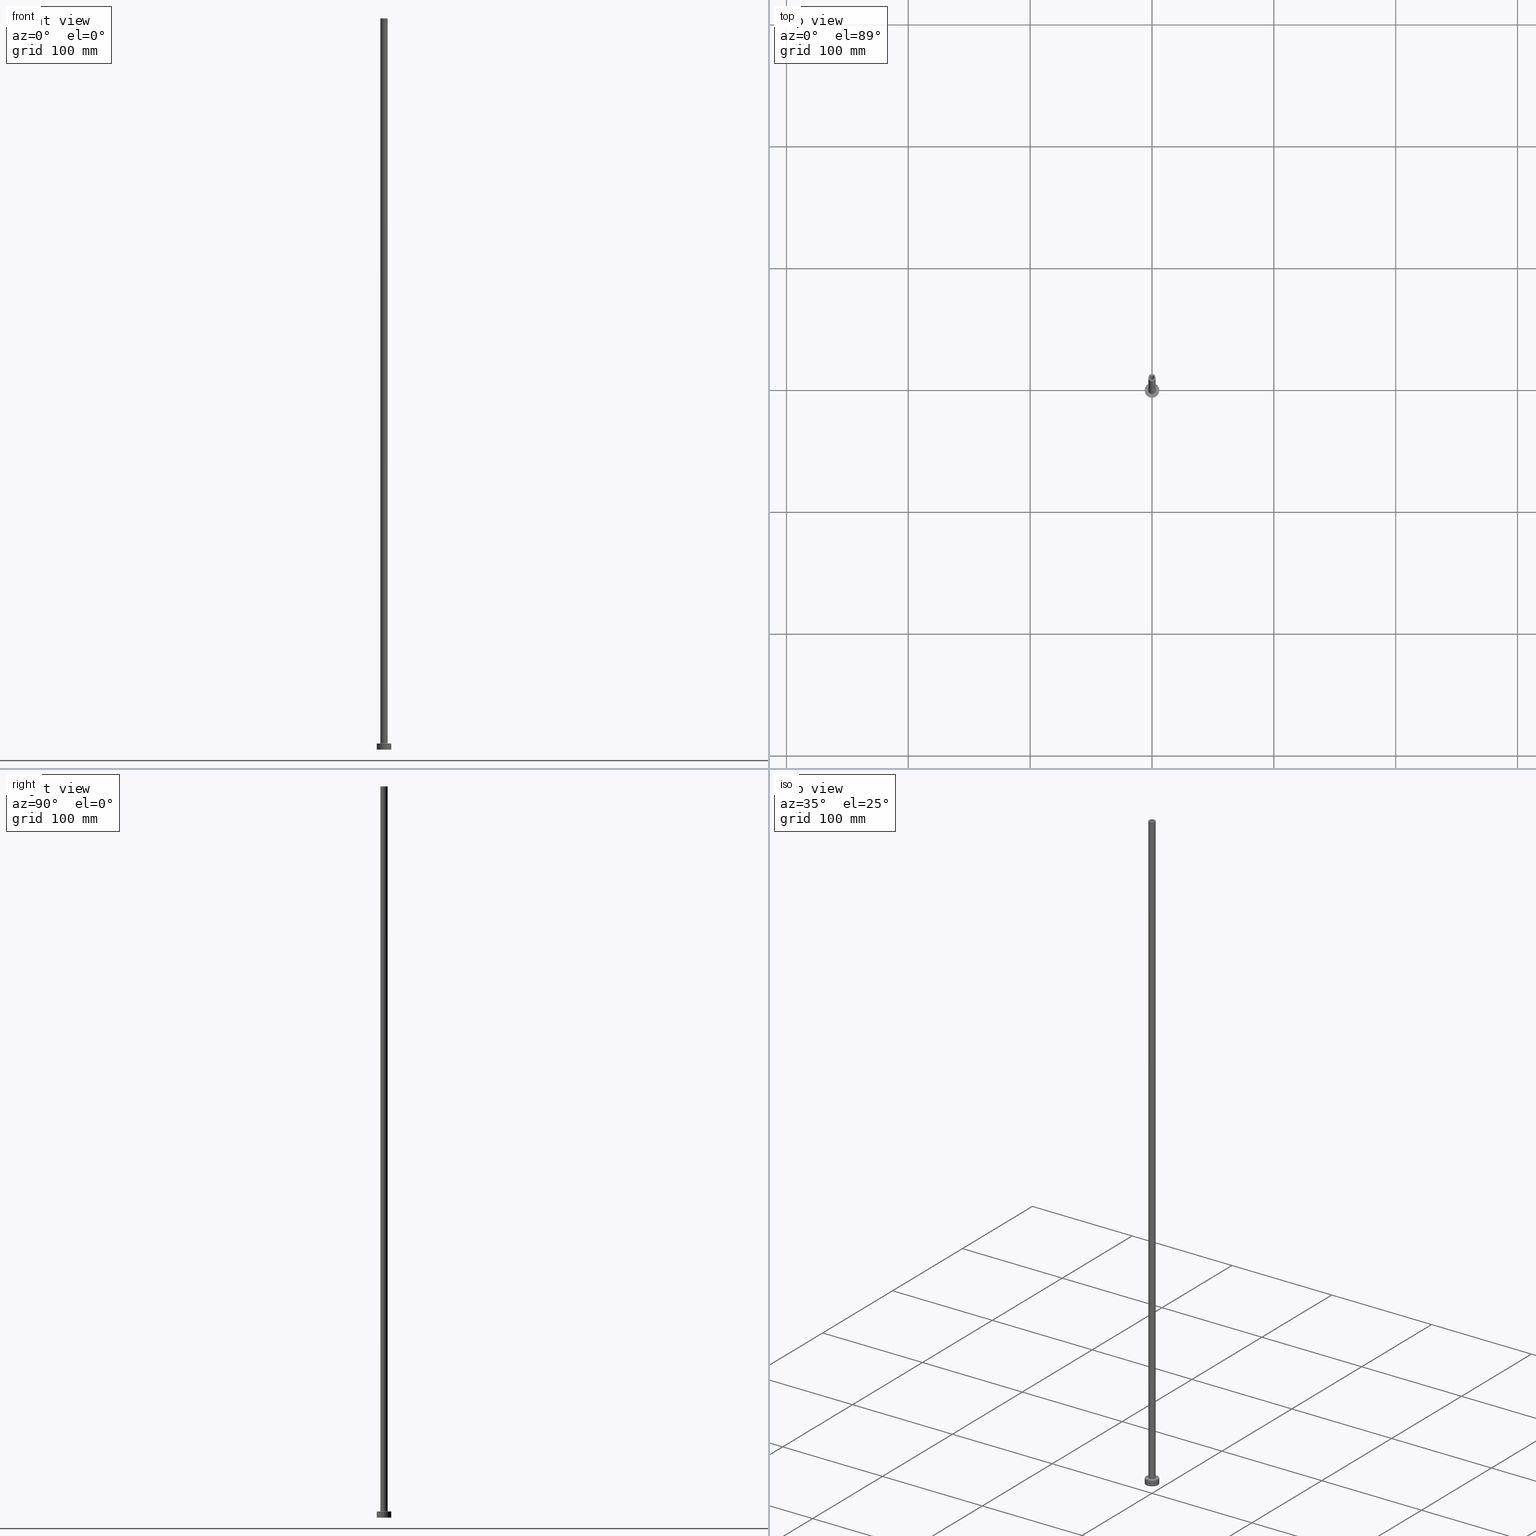
[diagram: canonical four-view strip — front | top / right | iso, engineering-drawing reading convention]
A machine part, canonical four-view strip (front | top / right | iso — engineering-drawing reading convention). The complete STEP part file that produces these views, byte-faithful:
ISO-10303-21;
HEADER;
FILE_DESCRIPTION (( 'STEP AP203' ),
    '1' );
FILE_NAME ('f50b.STEP',
    '2023-02-13T17:48:29',
    ( '' ),
    ( '' ),
    'SwSTEP 2.0',
    'SolidWorks 2019',
    '' );
FILE_SCHEMA (( 'CONFIG_CONTROL_DESIGN' ));
ENDSEC;

DATA;
#1 = DIRECTION ( 'NONE',  ( 1.000000000000000000, 0.000000000000000000, -0.000000000000000000 ) ) ;
#2 = DIRECTION ( 'NONE',  ( 1.000000000000000000, 0.000000000000000000, 0.000000000000000000 ) ) ;
#3 = CC_DESIGN_APPROVAL ( #212, ( #96 ) ) ;
#4 = DIRECTION ( 'NONE',  ( 0.000000000000000000, 0.000000000000000000, -1.000000000000000000 ) ) ;
#5 = AXIS2_PLACEMENT_3D ( 'NONE', #123, #365, #330 ) ;
#6 = ADVANCED_FACE ( 'NONE', ( #11 ), #353, .F. ) ;
#7 = PRODUCT ( 'f50b', 'f50b', '', ( #222 ) ) ;
#8 = CARTESIAN_POINT ( 'NONE',  ( 0.000000000000000000, 0.000000000000000000, 5.000000000000000000 ) ) ;
#9 = CARTESIAN_POINT ( 'NONE',  ( 0.000000000000000000, 0.000000000000000000, 5.000000000000000000 ) ) ;
#10 = AXIS2_PLACEMENT_3D ( 'NONE', #9, #443, #147 ) ;
#11 = FACE_OUTER_BOUND ( 'NONE', #180, .T. ) ;
#12 = EDGE_CURVE ( 'NONE', #36, #326, #440, .T. ) ;
#13 = DIRECTION ( 'NONE',  ( -1.000000000000000000, 0.000000000000000000, 0.000000000000000000 ) ) ;
#14 = PRODUCT_RELATED_PRODUCT_CATEGORY ( 'detail', '', ( #7 ) ) ;
#15 = APPROVAL_DATE_TIME ( #215, #333 ) ;
#16 = EDGE_LOOP ( 'NONE', ( #197, #402 ) ) ;
#17 = CARTESIAN_POINT ( 'NONE',  ( 0.000000000000000000, 0.000000000000000000, 5.499999999999949374 ) ) ;
#18 = APPLICATION_PROTOCOL_DEFINITION ( 'international standard', 'config_control_design', 1994, #119 ) ;
#19 = VECTOR ( 'NONE', #265, 1000.000000000000000 ) ;
#20 = ORIENTED_EDGE ( 'NONE', *, *, #322, .T. ) ;
#21 = EDGE_LOOP ( 'NONE', ( #218, #242, #193, #224 ) ) ;
#22 = EDGE_CURVE ( 'NONE', #155, #229, #398, .T. ) ;
#23 = EDGE_LOOP ( 'NONE', ( #46, #350, #362, #122 ) ) ;
#24 = CYLINDRICAL_SURFACE ( 'NONE', #146, 3.000000000000000444 ) ;
#25 = ORIENTED_EDGE ( 'NONE', *, *, #195, .F. ) ;
#26 = CARTESIAN_POINT ( 'NONE',  ( 1.899999999999999911, 2.326828918379971365E-16, 0.000000000000000000 ) ) ;
#27 = CC_DESIGN_PERSON_AND_ORGANIZATION_ASSIGNMENT ( #285, #445, ( #7 ) ) ;
#28 = APPROVAL_DATE_TIME ( #332, #158 ) ;
#29 = DIRECTION ( 'NONE',  ( 0.000000000000000000, 0.000000000000000000, 1.000000000000000000 ) ) ;
#30 = CARTESIAN_POINT ( 'NONE',  ( -1.899999999999999911, 0.000000000000000000, 554.9999999999998863 ) ) ;
#31 = AXIS2_PLACEMENT_3D ( 'NONE', #397, #149, #280 ) ;
#32 = LOCAL_TIME ( 18, 48, 29.00000000000000000, #277 ) ;
#33 = LINE ( 'NONE', #367, #347 ) ;
#34 = DIRECTION ( 'NONE',  ( -0.000000000000000000, -0.000000000000000000, -1.000000000000000000 ) ) ;
#35 = EDGE_CURVE ( 'NONE', #57, #155, #200, .T. ) ;
#36 = VERTEX_POINT ( 'NONE', #299 ) ;
#37 = DIRECTION ( 'NONE',  ( 0.000000000000000000, 0.000000000000000000, 1.000000000000000000 ) ) ;
#38 = CARTESIAN_POINT ( 'NONE',  ( 0.000000000000000000, 0.000000000000000000, 600.0000000000000000 ) ) ;
#39 = AXIS2_PLACEMENT_3D ( 'NONE', #185, #250, #188 ) ;
#40 = ADVANCED_FACE ( 'NONE', ( #416 ), #303, .F. ) ;
#41 = DIRECTION ( 'NONE',  ( 0.000000000000000000, -1.000000000000000000, 0.000000000000000000 ) ) ;
#42 = PERSON ( 'NEUR�EN�', 'NEUR�EN�', 'NEUR�EN�', ('NEUR�EN�'), ('NEUR�EN�'), ('NEUR�EN�') ) ;
#43 = DIRECTION ( 'NONE',  ( -1.000000000000000000, 0.000000000000000000, 0.000000000000000000 ) ) ;
#44 = COORDINATED_UNIVERSAL_TIME_OFFSET ( 1, 0, .AHEAD. ) ;
#45 = DIRECTION ( 'NONE',  ( 1.000000000000000000, 0.000000000000000000, -0.000000000000000000 ) ) ;
#46 = ORIENTED_EDGE ( 'NONE', *, *, #264, .F. ) ;
#47 = CIRCLE ( 'NONE', #5, 1.750000000000000000 ) ;
#48 = CC_DESIGN_DATE_AND_TIME_ASSIGNMENT ( #58, #355, ( #437 ) ) ;
#49 = PRODUCT_DEFINITION_SHAPE ( 'NONE', 'NONE',  #437 ) ;
#50 = FACE_OUTER_BOUND ( 'NONE', #23, .T. ) ;
#51 = VERTEX_POINT ( 'NONE', #236 ) ;
#52 = EDGE_CURVE ( 'NONE', #90, #438, #33, .T. ) ;
#53 = DIRECTION ( 'NONE',  ( -0.000000000000000000, -0.000000000000000000, -1.000000000000000000 ) ) ;
#54 = AXIS2_PLACEMENT_3D ( 'NONE', #17, #156, #290 ) ;
#55 = DIRECTION ( 'NONE',  ( 0.000000000000000000, 0.000000000000000000, 1.000000000000000000 ) ) ;
#56 = CALENDAR_DATE ( 2023, 13, 2 ) ;
#57 = VERTEX_POINT ( 'NONE', #380 ) ;
#58 = DATE_AND_TIME ( #56, #385 ) ;
#59 = ADVANCED_FACE ( 'NONE', ( #171, #425 ), #457, .F. ) ;
#60 = CIRCLE ( 'NONE', #325, 3.000000000000000444 ) ;
#61 = CYLINDRICAL_SURFACE ( 'NONE', #386, 6.000000000000000888 ) ;
#62 = ORIENTED_EDGE ( 'NONE', *, *, #52, .T. ) ;
#63 = VERTEX_POINT ( 'NONE', #337 ) ;
#64 = ORIENTED_EDGE ( 'NONE', *, *, #113, .F. ) ;
#65 = EDGE_LOOP ( 'NONE', ( #446, #422, #318, #289 ) ) ;
#66 = LOCAL_TIME ( 18, 48, 29.00000000000000000, #44 ) ;
#67 = AXIS2_PLACEMENT_3D ( 'NONE', #69, #37, #178 ) ;
#68 = PERSON_AND_ORGANIZATION ( #42, #434 ) ;
#69 = CARTESIAN_POINT ( 'NONE',  ( 0.000000000000000000, 0.000000000000000000, 554.9999999999998863 ) ) ;
#70 = PERSON_AND_ORGANIZATION_ROLE ( 'design_supplier' ) ;
#71 = LINE ( 'NONE', #301, #99 ) ;
#72 =( NAMED_UNIT ( * ) SI_UNIT ( $, .STERADIAN. ) SOLID_ANGLE_UNIT ( ) );
#73 = LOCAL_TIME ( 18, 48, 29.00000000000000000, #432 ) ;
#74 = ADVANCED_FACE ( 'NONE', ( #298 ), #334, .F. ) ;
#75 = ORIENTED_EDGE ( 'NONE', *, *, #286, .F. ) ;
#76 = CARTESIAN_POINT ( 'NONE',  ( -1.899999999999999911, 0.000000000000000000, 0.000000000000000000 ) ) ;
#77 = EDGE_CURVE ( 'NONE', #269, #331, #268, .T. ) ;
#78 = CIRCLE ( 'NONE', #54, 3.000000000000000444 ) ;
#79 = CYLINDRICAL_SURFACE ( 'NONE', #461, 1.899999999999999911 ) ;
#80 = ORIENTED_EDGE ( 'NONE', *, *, #240, .T. ) ;
#81 = FACE_OUTER_BOUND ( 'NONE', #241, .T. ) ;
#82 = ORIENTED_EDGE ( 'NONE', *, *, #153, .T. ) ;
#83 = CARTESIAN_POINT ( 'NONE',  ( -3.500000000000000444, 4.286263797015737088E-16, 5.499999999999949374 ) ) ;
#84 = FACE_OUTER_BOUND ( 'NONE', #231, .T. ) ;
#85 = COORDINATED_UNIVERSAL_TIME_OFFSET ( 1, 0, .AHEAD. ) ;
#86 = ORIENTED_EDGE ( 'NONE', *, *, #203, .F. ) ;
#87 = EDGE_LOOP ( 'NONE', ( #139, #181 ) ) ;
#88 = EDGE_CURVE ( 'NONE', #269, #305, #381, .T. ) ;
#89 = DIRECTION ( 'NONE',  ( 1.000000000000000000, 0.000000000000000000, 0.000000000000000000 ) ) ;
#90 = VERTEX_POINT ( 'NONE', #30 ) ;
#91 = EDGE_LOOP ( 'NONE', ( #20, #80 ) ) ;
#92 = EDGE_CURVE ( 'NONE', #90, #258, #211, .T. ) ;
#93 = DIRECTION ( 'NONE',  ( 0.000000000000000000, 0.000000000000000000, 1.000000000000000000 ) ) ;
#94 = CARTESIAN_POINT ( 'NONE',  ( -1.750000000000000000, 0.000000000000000000, 600.0000000000000000 ) ) ;
#95 = CARTESIAN_POINT ( 'NONE',  ( 0.000000000000000000, 0.000000000000000000, 5.000000000000000000 ) ) ;
#96 = PRODUCT_DEFINITION_FORMATION_WITH_SPECIFIED_SOURCE ( 'LIBOVOLN�', '', #7, .NOT_KNOWN. ) ;
#97 = DIRECTION ( 'NONE',  ( 0.000000000000000000, 0.000000000000000000, 1.000000000000000000 ) ) ;
#98 = DESIGN_CONTEXT ( 'detailed design', #270, 'design' ) ;
#99 = VECTOR ( 'NONE', #206, 1000.000000000000000 ) ;
#100 = FACE_OUTER_BOUND ( 'NONE', #144, .T. ) ;
#101 = CARTESIAN_POINT ( 'NONE',  ( 0.000000000000000000, 0.000000000000000000, 600.0000000000000000 ) ) ;
#102 =( NAMED_UNIT ( * ) PLANE_ANGLE_UNIT ( ) SI_UNIT ( $, .RADIAN. ) );
#103 = DIRECTION ( 'NONE',  ( 1.000000000000000000, 0.000000000000000000, 0.000000000000000000 ) ) ;
#104 = DATE_AND_TIME ( #418, #73 ) ;
#105 = ORIENTED_EDGE ( 'NONE', *, *, #240, .F. ) ;
#106 = CARTESIAN_POINT ( 'NONE',  ( 6.000000000000000888, 7.347880794884120722E-16, 0.000000000000000000 ) ) ;
#107 = EDGE_CURVE ( 'NONE', #366, #155, #71, .T. ) ;
#108 = APPROVAL_PERSON_ORGANIZATION ( #127, #212, #266 ) ;
#109 = CLOSED_SHELL ( 'NONE', ( #6, #329, #74, #348, #311, #419, #426, #59, #172, #271, #40, #304, #429, #455 ) ) ;
#110 = ORIENTED_EDGE ( 'NONE', *, *, #12, .T. ) ;
#111 = VECTOR ( 'NONE', #363, 1000.000000000000000 ) ;
#112 = CALENDAR_DATE ( 2023, 13, 2 ) ;
#113 = EDGE_CURVE ( 'NONE', #305, #232, #343, .T. ) ;
#114 = ORIENTED_EDGE ( 'NONE', *, *, #294, .F. ) ;
#115 = DIRECTION ( 'NONE',  ( -0.000000000000000000, -0.000000000000000000, -1.000000000000000000 ) ) ;
#116 = CARTESIAN_POINT ( 'NONE',  ( 1.750000000000000000, 2.143131898507868297E-16, 600.0000000000000000 ) ) ;
#117 = ORIENTED_EDGE ( 'NONE', *, *, #274, .F. ) ;
#118 = DIRECTION ( 'NONE',  ( -1.000000000000000000, 0.000000000000000000, 0.000000000000000000 ) ) ;
#119 = APPLICATION_CONTEXT ( 'configuration controlled 3d designs of mechanical parts and assemblies' ) ;
#120 = AXIS2_PLACEMENT_3D ( 'NONE', #279, #55, #257 ) ;
#121 = VERTEX_POINT ( 'NONE', #26 ) ;
#122 = ORIENTED_EDGE ( 'NONE', *, *, #88, .F. ) ;
#123 = CARTESIAN_POINT ( 'NONE',  ( 0.000000000000000000, 0.000000000000000000, 554.9999999999998863 ) ) ;
#124 = AXIS2_PLACEMENT_3D ( 'NONE', #319, #401, #13 ) ;
#125 = VECTOR ( 'NONE', #175, 1000.000000000000000 ) ;
#126 = FACE_OUTER_BOUND ( 'NONE', #16, .T. ) ;
#127 = PERSON_AND_ORGANIZATION ( #42, #434 ) ;
#128 = ORIENTED_EDGE ( 'NONE', *, *, #107, .T. ) ;
#129 = DIRECTION ( 'NONE',  ( 1.000000000000000000, 0.000000000000000000, 0.000000000000000000 ) ) ;
#130 = CARTESIAN_POINT ( 'NONE',  ( 0.000000000000000000, 0.000000000000000000, 5.499999999999949374 ) ) ;
#131 = AXIS2_PLACEMENT_3D ( 'NONE', #196, #134, #129 ) ;
#132 = CARTESIAN_POINT ( 'NONE',  ( 0.000000000000000000, 0.000000000000000000, 5.000000000000000000 ) ) ;
#133 = DIRECTION ( 'NONE',  ( 0.000000000000000000, 0.000000000000000000, -1.000000000000000000 ) ) ;
#134 = DIRECTION ( 'NONE',  ( 0.000000000000000000, 0.000000000000000000, 1.000000000000000000 ) ) ;
#135 = CC_DESIGN_PERSON_AND_ORGANIZATION_ASSIGNMENT ( #308, #70, ( #96 ) ) ;
#136 = APPROVAL_ROLE ( '' ) ;
#137 = FACE_OUTER_BOUND ( 'NONE', #21, .T. ) ;
#138 = CARTESIAN_POINT ( 'NONE',  ( 1.899999999999999911, 2.326828918379971365E-16, 554.9999999999998863 ) ) ;
#139 = ORIENTED_EDGE ( 'NONE', *, *, #203, .T. ) ;
#140 = EDGE_CURVE ( 'NONE', #424, #57, #411, .T. ) ;
#141 = CARTESIAN_POINT ( 'NONE',  ( 0.000000000000000000, 0.000000000000000000, 600.0000000000000000 ) ) ;
#142 = CIRCLE ( 'NONE', #273, 1.750000000000000000 ) ;
#143 = DIRECTION ( 'NONE',  ( 0.000000000000000000, 0.000000000000000000, -1.000000000000000000 ) ) ;
#144 = EDGE_LOOP ( 'NONE', ( #409, #221 ) ) ;
#145 = EDGE_CURVE ( 'NONE', #331, #232, #291, .T. ) ;
#146 = AXIS2_PLACEMENT_3D ( 'NONE', #283, #214, #118 ) ;
#147 = DIRECTION ( 'NONE',  ( 1.000000000000000000, 0.000000000000000000, 0.000000000000000000 ) ) ;
#148 = CIRCLE ( 'NONE', #413, 1.899999999999999911 ) ;
#149 = DIRECTION ( 'NONE',  ( 0.000000000000000000, 0.000000000000000000, -1.000000000000000000 ) ) ;
#150 = ORIENTED_EDGE ( 'NONE', *, *, #391, .F. ) ;
#151 = CARTESIAN_POINT ( 'NONE',  ( 6.000000000000000888, 7.347880794884120722E-16, 5.000000000000000000 ) ) ;
#152 = ORIENTED_EDGE ( 'NONE', *, *, #230, .F. ) ;
#153 = EDGE_CURVE ( 'NONE', #366, #424, #216, .T. ) ;
#154 = DIRECTION ( 'NONE',  ( 1.000000000000000000, 0.000000000000000000, 0.000000000000000000 ) ) ;
#155 = VERTEX_POINT ( 'NONE', #187 ) ;
#156 = DIRECTION ( 'NONE',  ( 0.000000000000000000, 0.000000000000000000, 1.000000000000000000 ) ) ;
#157 = AXIS2_PLACEMENT_3D ( 'NONE', #369, #456, #173 ) ;
#158 = APPROVAL ( #296, 'NEUR�EN�' ) ;
#159 = PLANE ( 'NONE',  #120 ) ;
#160 = CALENDAR_DATE ( 2023, 13, 2 ) ;
#161 = ORIENTED_EDGE ( 'NONE', *, *, #52, .F. ) ;
#162 = ORIENTED_EDGE ( 'NONE', *, *, #322, .F. ) ;
#163 = CARTESIAN_POINT ( 'NONE',  ( 3.000000000000000444, 3.673940397442060361E-16, 600.0000000000000000 ) ) ;
#164 = PERSON_AND_ORGANIZATION_ROLE ( 'creator' ) ;
#165 = AXIS2_PLACEMENT_3D ( 'NONE', #130, #414, #458 ) ;
#166 = AXIS2_PLACEMENT_3D ( 'NONE', #441, #255, #404 ) ;
#167 = DIRECTION ( 'NONE',  ( -0.000000000000000000, -0.000000000000000000, -1.000000000000000000 ) ) ;
#168 = PERSON_AND_ORGANIZATION ( #42, #434 ) ;
#169 = EDGE_LOOP ( 'NONE', ( #261, #444, #375, #161 ) ) ;
#170 = DIRECTION ( 'NONE',  ( -1.000000000000000000, 0.000000000000000000, 0.000000000000000000 ) ) ;
#171 = FACE_BOUND ( 'NONE', #393, .T. ) ;
#172 = ADVANCED_FACE ( 'NONE', ( #394 ), #24, .T. ) ;
#173 = DIRECTION ( 'NONE',  ( 1.000000000000000000, 0.000000000000000000, 0.000000000000000000 ) ) ;
#174 = LOCAL_TIME ( 18, 48, 29.00000000000000000, #85 ) ;
#175 = DIRECTION ( 'NONE',  ( 0.000000000000000000, 0.000000000000000000, -1.000000000000000000 ) ) ;
#176 = APPROVAL_STATUS ( 'not_yet_approved' ) ;
#177 = AXIS2_PLACEMENT_3D ( 'NONE', #406, #29, #306 ) ;
#178 = DIRECTION ( 'NONE',  ( 1.000000000000000000, 0.000000000000000000, 0.000000000000000000 ) ) ;
#179 = AXIS2_PLACEMENT_3D ( 'NONE', #132, #387, #45 ) ;
#180 = EDGE_LOOP ( 'NONE', ( #297, #110, #86, #341 ) ) ;
#181 = ORIENTED_EDGE ( 'NONE', *, *, #186, .T. ) ;
#182 = AXIS2_PLACEMENT_3D ( 'NONE', #287, #53, #351 ) ;
#183 = UNCERTAINTY_MEASURE_WITH_UNIT (LENGTH_MEASURE( 1.000000000000000082E-05 ), #338, 'distance_accuracy_value', 'NONE');
#184 = AXIS2_PLACEMENT_3D ( 'NONE', #383, #420, #1 ) ;
#185 = CARTESIAN_POINT ( 'NONE',  ( 0.000000000000000000, 0.000000000000000000, 600.0000000000000000 ) ) ;
#186 = EDGE_CURVE ( 'NONE', #326, #51, #243, .T. ) ;
#187 = CARTESIAN_POINT ( 'NONE',  ( -3.000000000000000444, 0.000000000000000000, 5.499999999999949374 ) ) ;
#188 = DIRECTION ( 'NONE',  ( 1.000000000000000000, 0.000000000000000000, 0.000000000000000000 ) ) ;
#189 = DIRECTION ( 'NONE',  ( 1.224646799147353207E-16, 1.000000000000000000, -0.000000000000000000 ) ) ;
#190 = DIRECTION ( 'NONE',  ( 1.000000000000000000, 0.000000000000000000, 0.000000000000000000 ) ) ;
#191 = AXIS2_PLACEMENT_3D ( 'NONE', #263, #93, #190 ) ;
#192 = CIRCLE ( 'NONE', #39, 1.750000000000000000 ) ;
#193 = ORIENTED_EDGE ( 'NONE', *, *, #354, .T. ) ;
#194 = ORIENTED_EDGE ( 'NONE', *, *, #230, .T. ) ;
#195 = EDGE_CURVE ( 'NONE', #155, #57, #78, .T. ) ;
#196 = CARTESIAN_POINT ( 'NONE',  ( 0.000000000000000000, 0.000000000000000000, 0.000000000000000000 ) ) ;
#197 = ORIENTED_EDGE ( 'NONE', *, *, #77, .T. ) ;
#198 = ORIENTED_EDGE ( 'NONE', *, *, #107, .F. ) ;
#199 = EDGE_LOOP ( 'NONE', ( #64, #117 ) ) ;
#200 = CIRCLE ( 'NONE', #177, 3.000000000000000444 ) ;
#201 = AXIS2_PLACEMENT_3D ( 'NONE', #101, #415, #235 ) ;
#202 = ORIENTED_EDGE ( 'NONE', *, *, #249, .F. ) ;
#203 = EDGE_CURVE ( 'NONE', #51, #326, #47, .T. ) ;
#204 = CARTESIAN_POINT ( 'NONE',  ( 1.899999999999999911, 2.326828918379971365E-16, 560.3740115370177364 ) ) ;
#205 = PERSON_AND_ORGANIZATION_ROLE ( 'creator' ) ;
#206 = DIRECTION ( 'NONE',  ( -0.000000000000000000, -0.000000000000000000, -1.000000000000000000 ) ) ;
#207 = CIRCLE ( 'NONE', #237, 6.000000000000000888 ) ;
#208 =( GEOMETRIC_REPRESENTATION_CONTEXT ( 3 ) GLOBAL_UNCERTAINTY_ASSIGNED_CONTEXT ( ( #183 ) ) GLOBAL_UNIT_ASSIGNED_CONTEXT ( ( #338, #102, #72 ) ) REPRESENTATION_CONTEXT ( 'NONE', 'WORKASPACE' ) );
#209 = DIRECTION ( 'NONE',  ( 1.000000000000000000, 0.000000000000000000, -0.000000000000000000 ) ) ;
#210 = DATE_TIME_ROLE ( 'classification_date' ) ;
#211 = CIRCLE ( 'NONE', #67, 1.899999999999999911 ) ;
#212 = APPROVAL ( #454, 'NEUR�EN�' ) ;
#213 = CARTESIAN_POINT ( 'NONE',  ( -6.000000000000000888, 0.000000000000000000, 0.000000000000000000 ) ) ;
#214 = DIRECTION ( 'NONE',  ( -0.000000000000000000, -0.000000000000000000, -1.000000000000000000 ) ) ;
#215 = DATE_AND_TIME ( #372, #66 ) ;
#216 = CIRCLE ( 'NONE', #191, 3.000000000000000444 ) ;
#217 = DIRECTION ( 'NONE',  ( 0.000000000000000000, 0.000000000000000000, 1.000000000000000000 ) ) ;
#218 = ORIENTED_EDGE ( 'NONE', *, *, #12, .F. ) ;
#219 = APPROVAL_PERSON_ORGANIZATION ( #361, #158, #136 ) ;
#220 = DIRECTION ( 'NONE',  ( 0.000000000000000000, 0.000000000000000000, 1.000000000000000000 ) ) ;
#221 = ORIENTED_EDGE ( 'NONE', *, *, #436, .F. ) ;
#222 = MECHANICAL_CONTEXT ( 'NONE', #119, 'mechanical' ) ;
#223 = FACE_BOUND ( 'NONE', #288, .T. ) ;
#224 = ORIENTED_EDGE ( 'NONE', *, *, #186, .F. ) ;
#225 = APPROVAL_PERSON_ORGANIZATION ( #68, #333, #340 ) ;
#226 = SHAPE_DEFINITION_REPRESENTATION ( #49, #293 ) ;
#227 = FACE_OUTER_BOUND ( 'NONE', #169, .T. ) ;
#228 = COORDINATED_UNIVERSAL_TIME_OFFSET ( 1, 0, .AHEAD. ) ;
#229 = VERTEX_POINT ( 'NONE', #384 ) ;
#230 = EDGE_CURVE ( 'NONE', #438, #121, #323, .T. ) ;
#231 = EDGE_LOOP ( 'NONE', ( #324, #259, #278, #198 ) ) ;
#232 = VERTEX_POINT ( 'NONE', #106 ) ;
#233 = CARTESIAN_POINT ( 'NONE',  ( -3.000000000000000444, 0.000000000000000000, 600.0000000000000000 ) ) ;
#234 = EDGE_LOOP ( 'NONE', ( #150, #352, #62, #194 ) ) ;
#235 = DIRECTION ( 'NONE',  ( -1.000000000000000000, 0.000000000000000000, 0.000000000000000000 ) ) ;
#236 = CARTESIAN_POINT ( 'NONE',  ( -1.750000000000000000, 0.000000000000000000, 554.9999999999998863 ) ) ;
#237 = AXIS2_PLACEMENT_3D ( 'NONE', #314, #217, #89 ) ;
#238 = PLANE ( 'NONE',  #276 ) ;
#239 = VERTEX_POINT ( 'NONE', #452 ) ;
#240 = EDGE_CURVE ( 'NONE', #229, #239, #442, .T. ) ;
#241 = EDGE_LOOP ( 'NONE', ( #82, #364 ) ) ;
#242 = ORIENTED_EDGE ( 'NONE', *, *, #294, .T. ) ;
#243 = CIRCLE ( 'NONE', #421, 1.750000000000000000 ) ;
#244 = SECURITY_CLASSIFICATION_LEVEL ( 'unclassified' ) ;
#245 = EDGE_CURVE ( 'NONE', #57, #239, #390, .T. ) ;
#246 = AXIS2_PLACEMENT_3D ( 'NONE', #295, #97, #373 ) ;
#247 = CARTESIAN_POINT ( 'NONE',  ( 3.500000000000000444, 0.000000000000000000, 5.499999999999949374 ) ) ;
#248 = DIRECTION ( 'NONE',  ( -1.000000000000000000, 0.000000000000000000, 0.000000000000000000 ) ) ;
#249 = EDGE_CURVE ( 'NONE', #63, #36, #142, .T. ) ;
#250 = DIRECTION ( 'NONE',  ( 0.000000000000000000, 0.000000000000000000, 1.000000000000000000 ) ) ;
#251 = ORIENTED_EDGE ( 'NONE', *, *, #245, .T. ) ;
#252 = DIRECTION ( 'NONE',  ( 0.000000000000000000, 0.000000000000000000, -1.000000000000000000 ) ) ;
#253 = CARTESIAN_POINT ( 'NONE',  ( 0.000000000000000000, 0.000000000000000000, 560.3740115370177364 ) ) ;
#254 = CARTESIAN_POINT ( 'NONE',  ( 0.000000000000000000, 0.000000000000000000, 554.9999999999998863 ) ) ;
#255 = DIRECTION ( 'NONE',  ( 0.000000000000000000, 0.000000000000000000, 1.000000000000000000 ) ) ;
#256 = DIRECTION ( 'NONE',  ( -1.000000000000000000, 1.224646799147354440E-16, 0.000000000000000000 ) ) ;
#257 = DIRECTION ( 'NONE',  ( 1.000000000000000000, 0.000000000000000000, -0.000000000000000000 ) ) ;
#258 = VERTEX_POINT ( 'NONE', #138 ) ;
#259 = ORIENTED_EDGE ( 'NONE', *, *, #140, .T. ) ;
#260 = CC_DESIGN_SECURITY_CLASSIFICATION ( #430, ( #96 ) ) ;
#261 = ORIENTED_EDGE ( 'NONE', *, *, #92, .T. ) ;
#262 = VECTOR ( 'NONE', #252, 1000.000000000000000 ) ;
#263 = CARTESIAN_POINT ( 'NONE',  ( 0.000000000000000000, 0.000000000000000000, 600.0000000000000000 ) ) ;
#264 = EDGE_CURVE ( 'NONE', #331, #269, #433, .T. ) ;
#265 = DIRECTION ( 'NONE',  ( -0.000000000000000000, -0.000000000000000000, -1.000000000000000000 ) ) ;
#266 = APPROVAL_ROLE ( '' ) ;
#267 = DIRECTION ( 'NONE',  ( 1.000000000000000000, 0.000000000000000000, 0.000000000000000000 ) ) ;
#268 = CIRCLE ( 'NONE', #157, 6.000000000000000888 ) ;
#269 = VERTEX_POINT ( 'NONE', #408 ) ;
#270 = APPLICATION_CONTEXT ( 'configuration controlled 3d designs of mechanical parts and assemblies' ) ;
#271 = ADVANCED_FACE ( 'NONE', ( #223, #81 ), #159, .T. ) ;
#272 = PERSON_AND_ORGANIZATION ( #42, #434 ) ;
#273 = AXIS2_PLACEMENT_3D ( 'NONE', #435, #313, #309 ) ;
#274 = EDGE_CURVE ( 'NONE', #232, #305, #207, .T. ) ;
#275 = CIRCLE ( 'NONE', #10, 3.500000000000000444 ) ;
#276 = AXIS2_PLACEMENT_3D ( 'NONE', #307, #339, #209 ) ;
#277 = COORDINATED_UNIVERSAL_TIME_OFFSET ( 1, 0, .AHEAD. ) ;
#278 = ORIENTED_EDGE ( 'NONE', *, *, #35, .T. ) ;
#279 = CARTESIAN_POINT ( 'NONE',  ( 0.000000000000000000, 0.000000000000000000, 600.0000000000000000 ) ) ;
#280 = DIRECTION ( 'NONE',  ( -1.000000000000000000, 0.000000000000000000, 0.000000000000000000 ) ) ;
#281 = CC_DESIGN_PERSON_AND_ORGANIZATION_ASSIGNMENT ( #272, #460, ( #430 ) ) ;
#282 = CARTESIAN_POINT ( 'NONE',  ( 0.000000000000000000, 0.000000000000000000, 0.000000000000000000 ) ) ;
#283 = CARTESIAN_POINT ( 'NONE',  ( 0.000000000000000000, 0.000000000000000000, 600.0000000000000000 ) ) ;
#284 = FACE_OUTER_BOUND ( 'NONE', #234, .T. ) ;
#285 = PERSON_AND_ORGANIZATION ( #42, #434 ) ;
#286 = EDGE_CURVE ( 'NONE', #121, #438, #389, .T. ) ;
#287 = CARTESIAN_POINT ( 'NONE',  ( 0.000000000000000000, 0.000000000000000000, 5.000000000000000000 ) ) ;
#288 = EDGE_LOOP ( 'NONE', ( #202, #114 ) ) ;
#289 = ORIENTED_EDGE ( 'NONE', *, *, #113, .T. ) ;
#290 = DIRECTION ( 'NONE',  ( 1.000000000000000000, 0.000000000000000000, 0.000000000000000000 ) ) ;
#291 = LINE ( 'NONE', #449, #19 ) ;
#292 = AXIS2_PLACEMENT_3D ( 'NONE', #95, #34, #267 ) ;
#293 = ADVANCED_BREP_SHAPE_REPRESENTATION ( 'f50b', ( #388, #166 ), #208 ) ;
#294 = EDGE_CURVE ( 'NONE', #36, #63, #192, .T. ) ;
#295 = CARTESIAN_POINT ( 'NONE',  ( 0.000000000000000000, 0.000000000000000000, 5.499999999999949374 ) ) ;
#296 = APPROVAL_STATUS ( 'not_yet_approved' ) ;
#297 = ORIENTED_EDGE ( 'NONE', *, *, #249, .T. ) ;
#298 = FACE_OUTER_BOUND ( 'NONE', #335, .T. ) ;
#299 = CARTESIAN_POINT ( 'NONE',  ( 1.750000000000000000, 2.143131898507868297E-16, 600.0000000000000000 ) ) ;
#300 = CARTESIAN_POINT ( 'NONE',  ( 0.000000000000000000, 0.000000000000000000, 0.000000000000000000 ) ) ;
#301 = CARTESIAN_POINT ( 'NONE',  ( -3.000000000000000444, 0.000000000000000000, 600.0000000000000000 ) ) ;
#302 = DIRECTION ( 'NONE',  ( 0.000000000000000000, 0.000000000000000000, -1.000000000000000000 ) ) ;
#303 = TOROIDAL_SURFACE ( 'NONE', #246, 3.500000000000000444, 0.5000000000000000000 ) ;
#304 = ADVANCED_FACE ( 'NONE', ( #284 ), #79, .F. ) ;
#305 = VERTEX_POINT ( 'NONE', #213 ) ;
#306 = DIRECTION ( 'NONE',  ( 1.000000000000000000, 0.000000000000000000, 0.000000000000000000 ) ) ;
#307 = CARTESIAN_POINT ( 'NONE',  ( 0.000000000000000000, 0.000000000000000000, 554.9999999999998863 ) ) ;
#308 = PERSON_AND_ORGANIZATION ( #42, #434 ) ;
#309 = DIRECTION ( 'NONE',  ( 1.000000000000000000, 0.000000000000000000, 0.000000000000000000 ) ) ;
#310 = DIRECTION ( 'NONE',  ( 0.000000000000000000, 0.000000000000000000, 1.000000000000000000 ) ) ;
#311 = ADVANCED_FACE ( 'NONE', ( #50 ), #349, .T. ) ;
#312 = AXIS2_PLACEMENT_3D ( 'NONE', #247, #41, #143 ) ;
#313 = DIRECTION ( 'NONE',  ( 0.000000000000000000, 0.000000000000000000, 1.000000000000000000 ) ) ;
#314 = CARTESIAN_POINT ( 'NONE',  ( 0.000000000000000000, 0.000000000000000000, 0.000000000000000000 ) ) ;
#315 = AXIS2_PLACEMENT_3D ( 'NONE', #8, #220, #392 ) ;
#316 = VECTOR ( 'NONE', #302, 1000.000000000000000 ) ;
#317 = CYLINDRICAL_SURFACE ( 'NONE', #124, 1.899999999999999911 ) ;
#318 = ORIENTED_EDGE ( 'NONE', *, *, #88, .T. ) ;
#319 = CARTESIAN_POINT ( 'NONE',  ( 0.000000000000000000, 0.000000000000000000, 560.3740115370177364 ) ) ;
#320 = CYLINDRICAL_SURFACE ( 'NONE', #201, 3.000000000000000444 ) ;
#321 = DIRECTION ( 'NONE',  ( 1.000000000000000000, 0.000000000000000000, 0.000000000000000000 ) ) ;
#322 = EDGE_CURVE ( 'NONE', #239, #229, #275, .T. ) ;
#323 = CIRCLE ( 'NONE', #412, 1.899999999999999911 ) ;
#324 = ORIENTED_EDGE ( 'NONE', *, *, #400, .F. ) ;
#325 = AXIS2_PLACEMENT_3D ( 'NONE', #38, #459, #103 ) ;
#326 = VERTEX_POINT ( 'NONE', #439 ) ;
#327 = ORIENTED_EDGE ( 'NONE', *, *, #22, .F. ) ;
#328 = CARTESIAN_POINT ( 'NONE',  ( 0.000000000000000000, 0.000000000000000000, 5.000000000000000000 ) ) ;
#329 = ADVANCED_FACE ( 'NONE', ( #227 ), #317, .F. ) ;
#330 = DIRECTION ( 'NONE',  ( 1.000000000000000000, 0.000000000000000000, 0.000000000000000000 ) ) ;
#331 = VERTEX_POINT ( 'NONE', #151 ) ;
#332 = DATE_AND_TIME ( #112, #32 ) ;
#333 = APPROVAL ( #176, 'NEUR�EN�' ) ;
#334 = TOROIDAL_SURFACE ( 'NONE', #165, 3.500000000000000444, 0.5000000000000000000 ) ;
#335 = EDGE_LOOP ( 'NONE', ( #25, #368, #162, #342 ) ) ;
#336 = DIRECTION ( 'NONE',  ( -0.000000000000000000, -0.000000000000000000, -1.000000000000000000 ) ) ;
#337 = CARTESIAN_POINT ( 'NONE',  ( -1.750000000000000000, 0.000000000000000000, 600.0000000000000000 ) ) ;
#338 =( LENGTH_UNIT ( ) NAMED_UNIT ( * ) SI_UNIT ( .MILLI., .METRE. ) );
#339 = DIRECTION ( 'NONE',  ( 0.000000000000000000, 0.000000000000000000, 1.000000000000000000 ) ) ;
#340 = APPROVAL_ROLE ( '' ) ;
#341 = ORIENTED_EDGE ( 'NONE', *, *, #354, .F. ) ;
#342 = ORIENTED_EDGE ( 'NONE', *, *, #245, .F. ) ;
#343 = CIRCLE ( 'NONE', #131, 6.000000000000000888 ) ;
#344 = FACE_BOUND ( 'NONE', #87, .T. ) ;
#345 = CARTESIAN_POINT ( 'NONE',  ( 0.000000000000000000, 0.000000000000000000, 554.9999999999998863 ) ) ;
#346 = CC_DESIGN_PERSON_AND_ORGANIZATION_ASSIGNMENT ( #378, #205, ( #96 ) ) ;
#347 = VECTOR ( 'NONE', #133, 1000.000000000000000 ) ;
#348 = ADVANCED_FACE ( 'NONE', ( #84 ), #320, .T. ) ;
#349 = CYLINDRICAL_SURFACE ( 'NONE', #182, 6.000000000000000888 ) ;
#350 = ORIENTED_EDGE ( 'NONE', *, *, #145, .T. ) ;
#351 = DIRECTION ( 'NONE',  ( -1.000000000000000000, 0.000000000000000000, 0.000000000000000000 ) ) ;
#352 = ORIENTED_EDGE ( 'NONE', *, *, #436, .T. ) ;
#353 = CYLINDRICAL_SURFACE ( 'NONE', #31, 1.750000000000000000 ) ;
#354 = EDGE_CURVE ( 'NONE', #63, #51, #371, .T. ) ;
#355 = DATE_TIME_ROLE ( 'creation_date' ) ;
#356 = ORIENTED_EDGE ( 'NONE', *, *, #153, .F. ) ;
#357 = CC_DESIGN_APPROVAL ( #158, ( #437 ) ) ;
#358 = AXIS2_PLACEMENT_3D ( 'NONE', #83, #189, #256 ) ;
#359 = FACE_OUTER_BOUND ( 'NONE', #65, .T. ) ;
#360 = EDGE_LOOP ( 'NONE', ( #327, #410, #251, #105 ) ) ;
#361 = PERSON_AND_ORGANIZATION ( #42, #434 ) ;
#362 = ORIENTED_EDGE ( 'NONE', *, *, #274, .T. ) ;
#363 = DIRECTION ( 'NONE',  ( -0.000000000000000000, -0.000000000000000000, -1.000000000000000000 ) ) ;
#364 = ORIENTED_EDGE ( 'NONE', *, *, #400, .T. ) ;
#365 = DIRECTION ( 'NONE',  ( 0.000000000000000000, 0.000000000000000000, 1.000000000000000000 ) ) ;
#366 = VERTEX_POINT ( 'NONE', #233 ) ;
#367 = CARTESIAN_POINT ( 'NONE',  ( -1.899999999999999911, 0.000000000000000000, 560.3740115370177364 ) ) ;
#368 = ORIENTED_EDGE ( 'NONE', *, *, #22, .T. ) ;
#369 = CARTESIAN_POINT ( 'NONE',  ( 0.000000000000000000, 0.000000000000000000, 5.000000000000000000 ) ) ;
#370 = DIRECTION ( 'NONE',  ( -0.000000000000000000, -0.000000000000000000, -1.000000000000000000 ) ) ;
#371 = LINE ( 'NONE', #94, #316 ) ;
#372 = CALENDAR_DATE ( 2023, 13, 2 ) ;
#373 = DIRECTION ( 'NONE',  ( 1.000000000000000000, 0.000000000000000000, 0.000000000000000000 ) ) ;
#374 = AXIS2_PLACEMENT_3D ( 'NONE', #282, #115, #154 ) ;
#375 = ORIENTED_EDGE ( 'NONE', *, *, #286, .T. ) ;
#376 = CYLINDRICAL_SURFACE ( 'NONE', #399, 1.750000000000000000 ) ;
#377 = LINE ( 'NONE', #204, #125 ) ;
#378 = PERSON_AND_ORGANIZATION ( #42, #434 ) ;
#379 = EDGE_LOOP ( 'NONE', ( #428, #356, #128, #447 ) ) ;
#380 = CARTESIAN_POINT ( 'NONE',  ( 3.000000000000000444, 3.673940397442060361E-16, 5.499999999999949374 ) ) ;
#381 = LINE ( 'NONE', #453, #111 ) ;
#382 = APPROVAL_DATE_TIME ( #423, #212 ) ;
#383 = CARTESIAN_POINT ( 'NONE',  ( 0.000000000000000000, 0.000000000000000000, 0.000000000000000000 ) ) ;
#384 = CARTESIAN_POINT ( 'NONE',  ( -3.500000000000000444, 4.286263797015737088E-16, 4.999999999999975131 ) ) ;
#385 = LOCAL_TIME ( 18, 48, 29.00000000000000000, #228 ) ;
#386 = AXIS2_PLACEMENT_3D ( 'NONE', #328, #370, #170 ) ;
#387 = DIRECTION ( 'NONE',  ( 0.000000000000000000, 0.000000000000000000, 1.000000000000000000 ) ) ;
#388 = MANIFOLD_SOLID_BREP ( 'Odebrat vysunut�m4', #109 ) ;
#389 = CIRCLE ( 'NONE', #374, 1.899999999999999911 ) ;
#390 = CIRCLE ( 'NONE', #312, 0.5000000000000004441 ) ;
#391 = EDGE_CURVE ( 'NONE', #258, #121, #377, .T. ) ;
#392 = DIRECTION ( 'NONE',  ( 1.000000000000000000, 0.000000000000000000, 0.000000000000000000 ) ) ;
#393 = EDGE_LOOP ( 'NONE', ( #152, #75 ) ) ;
#394 = FACE_OUTER_BOUND ( 'NONE', #379, .T. ) ;
#395 = CC_DESIGN_DATE_AND_TIME_ASSIGNMENT ( #104, #210, ( #430 ) ) ;
#396 = DIRECTION ( 'NONE',  ( 0.000000000000000000, 0.000000000000000000, -1.000000000000000000 ) ) ;
#397 = CARTESIAN_POINT ( 'NONE',  ( 0.000000000000000000, 0.000000000000000000, 600.0000000000000000 ) ) ;
#398 = CIRCLE ( 'NONE', #358, 0.4999999999999995559 ) ;
#399 = AXIS2_PLACEMENT_3D ( 'NONE', #141, #4, #43 ) ;
#400 = EDGE_CURVE ( 'NONE', #424, #366, #60, .T. ) ;
#401 = DIRECTION ( 'NONE',  ( 0.000000000000000000, 0.000000000000000000, -1.000000000000000000 ) ) ;
#402 = ORIENTED_EDGE ( 'NONE', *, *, #264, .T. ) ;
#403 = DIRECTION ( 'NONE',  ( 0.000000000000000000, 0.000000000000000000, 1.000000000000000000 ) ) ;
#404 = DIRECTION ( 'NONE',  ( 1.000000000000000000, 0.000000000000000000, 0.000000000000000000 ) ) ;
#405 = CARTESIAN_POINT ( 'NONE',  ( 3.000000000000000444, 3.673940397442060361E-16, 600.0000000000000000 ) ) ;
#406 = CARTESIAN_POINT ( 'NONE',  ( 0.000000000000000000, 0.000000000000000000, 5.499999999999949374 ) ) ;
#407 = APPLICATION_PROTOCOL_DEFINITION ( 'international standard', 'config_control_design', 1994, #270 ) ;
#408 = CARTESIAN_POINT ( 'NONE',  ( -6.000000000000000888, 0.000000000000000000, 5.000000000000000000 ) ) ;
#409 = ORIENTED_EDGE ( 'NONE', *, *, #92, .F. ) ;
#410 = ORIENTED_EDGE ( 'NONE', *, *, #35, .F. ) ;
#411 = LINE ( 'NONE', #163, #450 ) ;
#412 = AXIS2_PLACEMENT_3D ( 'NONE', #300, #336, #427 ) ;
#413 = AXIS2_PLACEMENT_3D ( 'NONE', #345, #310, #2 ) ;
#414 = DIRECTION ( 'NONE',  ( 0.000000000000000000, 0.000000000000000000, 1.000000000000000000 ) ) ;
#415 = DIRECTION ( 'NONE',  ( -0.000000000000000000, -0.000000000000000000, -1.000000000000000000 ) ) ;
#416 = FACE_OUTER_BOUND ( 'NONE', #360, .T. ) ;
#417 = CC_DESIGN_PERSON_AND_ORGANIZATION_ASSIGNMENT ( #168, #164, ( #437 ) ) ;
#418 = CALENDAR_DATE ( 2023, 13, 2 ) ;
#419 = ADVANCED_FACE ( 'NONE', ( #359 ), #61, .T. ) ;
#420 = DIRECTION ( 'NONE',  ( 0.000000000000000000, 0.000000000000000000, 1.000000000000000000 ) ) ;
#421 = AXIS2_PLACEMENT_3D ( 'NONE', #254, #403, #321 ) ;
#422 = ORIENTED_EDGE ( 'NONE', *, *, #77, .F. ) ;
#423 = DATE_AND_TIME ( #160, #174 ) ;
#424 = VERTEX_POINT ( 'NONE', #405 ) ;
#425 = FACE_OUTER_BOUND ( 'NONE', #199, .T. ) ;
#426 = ADVANCED_FACE ( 'NONE', ( #451, #126 ), #431, .T. ) ;
#427 = DIRECTION ( 'NONE',  ( 1.000000000000000000, 0.000000000000000000, 0.000000000000000000 ) ) ;
#428 = ORIENTED_EDGE ( 'NONE', *, *, #140, .F. ) ;
#429 = ADVANCED_FACE ( 'NONE', ( #344, #100 ), #238, .F. ) ;
#430 = SECURITY_CLASSIFICATION ( '', '', #244 ) ;
#431 = PLANE ( 'NONE',  #179 ) ;
#432 = COORDINATED_UNIVERSAL_TIME_OFFSET ( 1, 0, .AHEAD. ) ;
#433 = CIRCLE ( 'NONE', #315, 6.000000000000000888 ) ;
#434 = ORGANIZATION ( 'NEUR�EN�', 'NEUR�EN�', '' ) ;
#435 = CARTESIAN_POINT ( 'NONE',  ( 0.000000000000000000, 0.000000000000000000, 600.0000000000000000 ) ) ;
#436 = EDGE_CURVE ( 'NONE', #258, #90, #148, .T. ) ;
#437 = PRODUCT_DEFINITION ( 'NEZN�M�', '', #96, #98 ) ;
#438 = VERTEX_POINT ( 'NONE', #76 ) ;
#439 = CARTESIAN_POINT ( 'NONE',  ( 1.750000000000000000, 2.143131898507868297E-16, 554.9999999999998863 ) ) ;
#440 = LINE ( 'NONE', #116, #262 ) ;
#441 = CARTESIAN_POINT ( 'NONE',  ( 0.000000000000000000, 0.000000000000000000, 0.000000000000000000 ) ) ;
#442 = CIRCLE ( 'NONE', #292, 3.500000000000000444 ) ;
#443 = DIRECTION ( 'NONE',  ( -0.000000000000000000, -0.000000000000000000, -1.000000000000000000 ) ) ;
#444 = ORIENTED_EDGE ( 'NONE', *, *, #391, .T. ) ;
#445 = PERSON_AND_ORGANIZATION_ROLE ( 'design_owner' ) ;
#446 = ORIENTED_EDGE ( 'NONE', *, *, #145, .F. ) ;
#447 = ORIENTED_EDGE ( 'NONE', *, *, #195, .T. ) ;
#448 = CC_DESIGN_APPROVAL ( #333, ( #430 ) ) ;
#449 = CARTESIAN_POINT ( 'NONE',  ( 6.000000000000000888, 7.347880794884120722E-16, 5.000000000000000000 ) ) ;
#450 = VECTOR ( 'NONE', #167, 1000.000000000000000 ) ;
#451 = FACE_BOUND ( 'NONE', #91, .T. ) ;
#452 = CARTESIAN_POINT ( 'NONE',  ( 3.500000000000000444, 0.000000000000000000, 4.999999999999975131 ) ) ;
#453 = CARTESIAN_POINT ( 'NONE',  ( -6.000000000000000888, 0.000000000000000000, 5.000000000000000000 ) ) ;
#454 = APPROVAL_STATUS ( 'not_yet_approved' ) ;
#455 = ADVANCED_FACE ( 'NONE', ( #137 ), #376, .F. ) ;
#456 = DIRECTION ( 'NONE',  ( 0.000000000000000000, 0.000000000000000000, 1.000000000000000000 ) ) ;
#457 = PLANE ( 'NONE',  #184 ) ;
#458 = DIRECTION ( 'NONE',  ( 1.000000000000000000, 0.000000000000000000, 0.000000000000000000 ) ) ;
#459 = DIRECTION ( 'NONE',  ( 0.000000000000000000, 0.000000000000000000, 1.000000000000000000 ) ) ;
#460 = PERSON_AND_ORGANIZATION_ROLE ( 'classification_officer' ) ;
#461 = AXIS2_PLACEMENT_3D ( 'NONE', #253, #396, #248 ) ;
ENDSEC;
END-ISO-10303-21;
